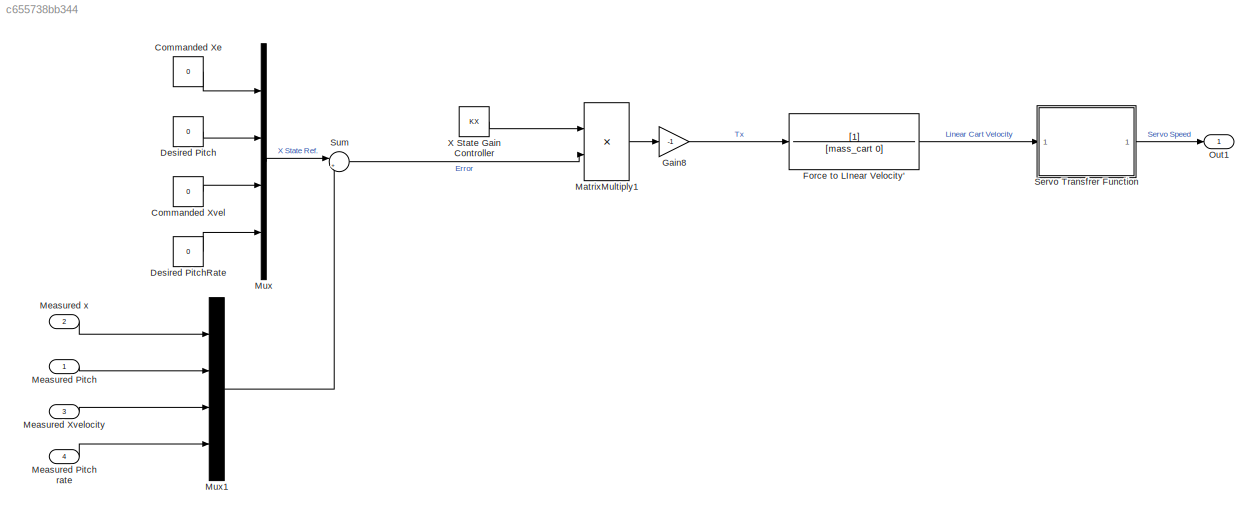
MODEL slx_c655738bb344
KIND model
CONFIG AbsTol = auto
CONFIG EnableMultiTasking = off
CONFIG FixedStep = auto
CONFIG MaxStep = auto
CONFIG MinStep = auto
CONFIG RelTol = 1e-3
CONFIG SampleTimeConstraint = Unconstrained
CONFIG SolverName = VariableStepAuto
CONFIG StartTime = 0.0
CONFIG StopTime = 2
BLOCK [Constant] Commanded Xe
  Value = 0
BLOCK [Constant] Commanded Xvel
  Value = 0
BLOCK [Constant] Desired Pitch
  Value = 0
BLOCK [Constant] Desired PitchRate
  Value = 0
BLOCK [TransferFcn] Force to LInear Velocity'
  Denominator = [mass_cart 0]
BLOCK [Gain] Gain8
  Gain = -1
BLOCK [Product] MatrixMultiply1
  Multiplication = Matrix(*)
  Ports = [2, 1]
BLOCK [Inport] Measured Pitch
BLOCK [Inport] Measured Pitch rate
  Port = 4
BLOCK [Inport] Measured Xvelocity
  Port = 3
BLOCK [Inport] Measured x
  Port = 2
BLOCK [Mux] Mux
  DisplayOption = bar
  Ports = [4, 1]
BLOCK [Mux] Mux1
  DisplayOption = bar
  Ports = [4, 1]
BLOCK [Outport] Out1
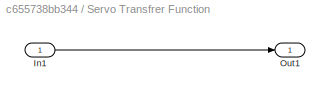
BLOCK [SubSystem] Servo Transfrer Function
  Ports = [1, 1]
  RequestExecContextInheritance = off
BLOCK [Inport] Servo Transfrer Function/In1
BLOCK [Outport] Servo Transfrer Function/Out1
BLOCK [Sum] Sum
  Inputs = |+-
  Ports = [2, 1]
BLOCK [Constant] X State Gain Controller
  Value = KX
  VectorParams1D = off
LINE Commanded Xe:1 -> Mux:1
LINE Commanded Xvel:1 -> Mux:3
LINE Desired Pitch:1 -> Mux:2
LINE Desired PitchRate:1 -> Mux:4
LINE Force to LInear Velocity':1 -> Servo Transfrer Function:1
LINE Gain8:1 -> Force to LInear Velocity':1
LINE MatrixMultiply1:1 -> Gain8:1
LINE Measured Pitch rate:1 -> Mux1:4
LINE Measured Pitch:1 -> Mux1:2
LINE Measured Xvelocity:1 -> Mux1:3
LINE Measured x:1 -> Mux1:1
LINE Mux1:1 -> Sum:2
LINE Mux:1 -> Sum:1
LINE Servo Transfrer Function/In1:1 -> Servo Transfrer Function/Out1:1
LINE Servo Transfrer Function:1 -> Out1:1
LINE Sum:1 -> MatrixMultiply1:2
LINE X State Gain Controller:1 -> MatrixMultiply1:1
